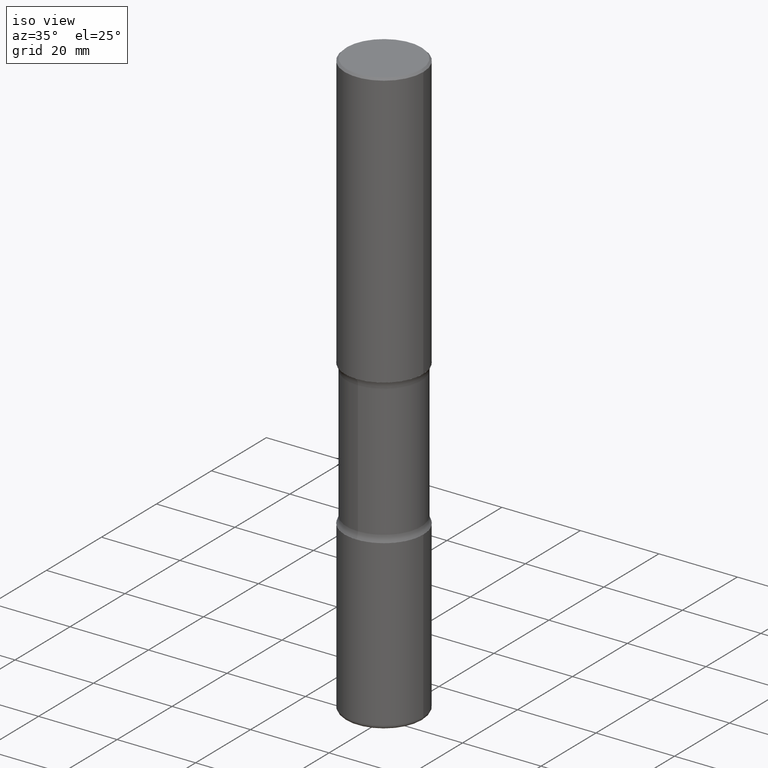
[diagram: clean part render]
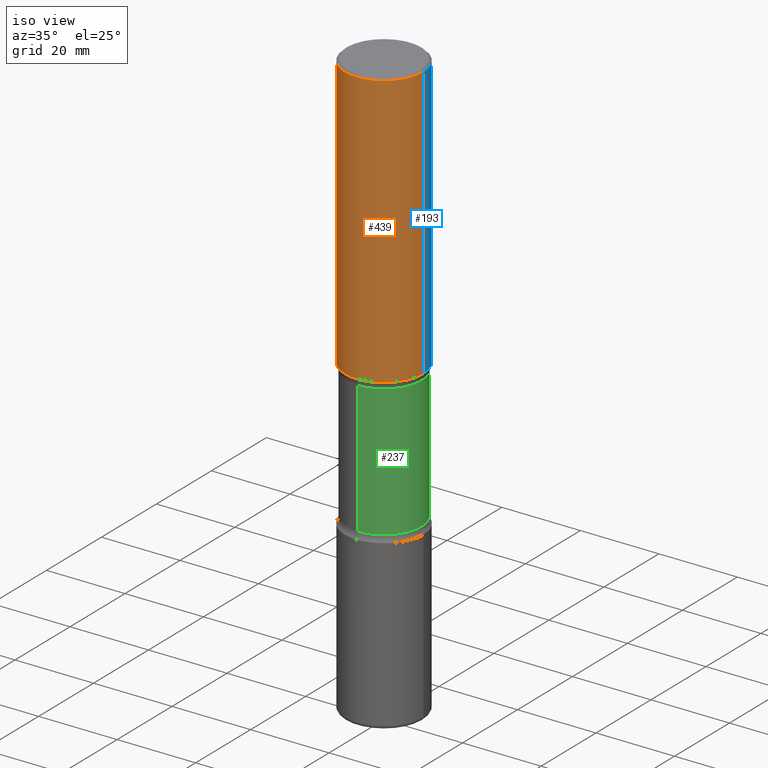
[diagram: same view with three faces highlighted in distinct colors, each labeled with its STEP entity id]
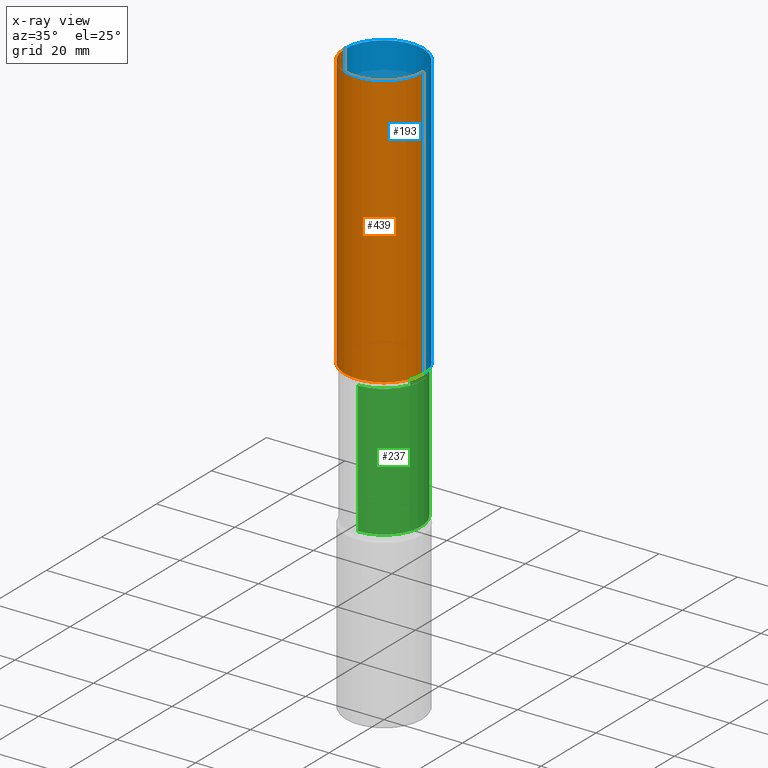
[diagram: x-ray of the same camera — body ghosted, the three highlighted faces saturated]
A machine part, iso view with three faces highlighted in distinct colors.
The next image is the same camera in x-ray (body ghosted, the three faces saturated) — at least one of them is partly hidden behind the body in this view.
Their STEP definitions:

[orange] entity #439 — the highlighted cylindrical surface (partial cylindrical patch) has radius 10 mm, axis along (-0, 0, 1).
#10 = DIRECTION ( 'NONE',  ( -2.445468806185136597E-29, 3.491481338843145583E-15, 1.000000000000000000 ) ) ;
#13 = VERTEX_POINT ( 'NONE', #344 ) ;
#45 = DIRECTION ( 'NONE',  ( 1.000000000000000000, -6.982962677686265133E-15, 0.000000000000000000 ) ) ;
#65 = AXIS2_PLACEMENT_3D ( 'NONE', #130, #10, #45 ) ;
#72 = ORIENTED_EDGE ( 'NONE', *, *, #134, .T. ) ;
#73 = DIRECTION ( 'NONE',  ( 1.000000000000000000, -6.982962677686266711E-15, 4.876176775795935793E-29 ) ) ;
#84 = AXIS2_PLACEMENT_3D ( 'NONE', #375, #150, #73 ) ;
#99 = VERTEX_POINT ( 'NONE', #522 ) ;
#125 = LINE ( 'NONE', #468, #254 ) ;
#130 = CARTESIAN_POINT ( 'NONE',  ( 6.739467482965614869E-29, -9.622173421717819657E-15, -2.755899999999998240 ) ) ;
#134 = EDGE_CURVE ( 'NONE', #252, #201, #372, .T. ) ;
#146 = EDGE_LOOP ( 'NONE', ( #482, #72, #299, #457 ) ) ;
#150 = DIRECTION ( 'NONE',  ( -2.445468806185136597E-29, 3.491481338843145583E-15, 1.000000000000000000 ) ) ;
#170 = DIRECTION ( 'NONE',  ( -2.445468806185136877E-29, 3.491481338843145188E-15, 1.000000000000000000 ) ) ;
#199 = CYLINDRICAL_SURFACE ( 'NONE', #84, 0.3937000000000001054 ) ;
#201 = VERTEX_POINT ( 'NONE', #355 ) ;
#209 = DIRECTION ( 'NONE',  ( -2.445468806185136597E-29, 3.491481338843145583E-15, 1.000000000000000000 ) ) ;
#252 = VERTEX_POINT ( 'NONE', #432 ) ;
#254 = VECTOR ( 'NONE', #170, 39.37007874015748143 ) ;
#255 = CIRCLE ( 'NONE', #437, 0.3936999999999999389 ) ;
#257 = CARTESIAN_POINT ( 'NONE',  ( 4.890937612370298557E-31, -6.982962677686327354E-17, -0.02000000000000010103 ) ) ;
#299 = ORIENTED_EDGE ( 'NONE', *, *, #301, .T. ) ;
#301 = EDGE_CURVE ( 'NONE', #201, #13, #310, .T. ) ;
#310 = LINE ( 'NONE', #478, #338 ) ;
#311 = DIRECTION ( 'NONE',  ( -2.445468806185136877E-29, 3.491481338843145188E-15, 1.000000000000000000 ) ) ;
#338 = VECTOR ( 'NONE', #311, 39.37007874015748143 ) ;
#344 = CARTESIAN_POINT ( 'NONE',  ( 0.3936999999999999389, -2.770807688499514945E-15, -0.02000000000000010103 ) ) ;
#355 = CARTESIAN_POINT ( 'NONE',  ( 0.3937000000000002164, -1.237136582792290287E-14, -2.755899999999998240 ) ) ;
#366 = EDGE_CURVE ( 'NONE', #252, #99, #125, .T. ) ;
#372 = CIRCLE ( 'NONE', #65, 0.3937000000000002164 ) ;
#375 = CARTESIAN_POINT ( 'NONE',  ( 0.000000000000000000, 0.000000000000000000, 0.000000000000000000 ) ) ;
#432 = CARTESIAN_POINT ( 'NONE',  ( -0.3937000000000002720, -2.048594773559823141E-15, -2.755899999999998240 ) ) ;
#437 = AXIS2_PLACEMENT_3D ( 'NONE', #257, #209, #558 ) ;
#439 = ADVANCED_FACE ( 'NONE', ( #458 ), #199, .T. ) ;
#445 = EDGE_CURVE ( 'NONE', #99, #13, #255, .T. ) ;
#457 = ORIENTED_EDGE ( 'NONE', *, *, #445, .F. ) ;
#458 = FACE_OUTER_BOUND ( 'NONE', #146, .T. ) ;
#468 = CARTESIAN_POINT ( 'NONE',  ( -0.3937000000000001054, 2.797406750687515181E-15, -1.936584745033357016E-29 ) ) ;
#478 = CARTESIAN_POINT ( 'NONE',  ( 0.3937000000000001054, -2.749192406205084005E-15, 1.919750796630860452E-29 ) ) ;
#482 = ORIENTED_EDGE ( 'NONE', *, *, #366, .F. ) ;
#522 = CARTESIAN_POINT ( 'NONE',  ( -0.3936999999999999389, 2.679362779428219524E-15, -0.02000000000000010103 ) ) ;
#558 = DIRECTION ( 'NONE',  ( 1.000000000000000000, -6.982962677686266711E-15, 0.000000000000000000 ) ) ;

[blue] entity #193 — the highlighted cylindrical surface (partial cylindrical patch) has radius 10 mm, axis along (-0, 0, 1).
#3 = CARTESIAN_POINT ( 'NONE',  ( 0.000000000000000000, 0.000000000000000000, 0.000000000000000000 ) ) ;
#13 = VERTEX_POINT ( 'NONE', #344 ) ;
#29 = CIRCLE ( 'NONE', #177, 0.3936999999999999389 ) ;
#99 = VERTEX_POINT ( 'NONE', #522 ) ;
#114 = ORIENTED_EDGE ( 'NONE', *, *, #301, .F. ) ;
#125 = LINE ( 'NONE', #468, #254 ) ;
#170 = DIRECTION ( 'NONE',  ( -2.445468806185136877E-29, 3.491481338843145188E-15, 1.000000000000000000 ) ) ;
#172 = DIRECTION ( 'NONE',  ( -2.445468806185136597E-29, 3.491481338843145583E-15, 1.000000000000000000 ) ) ;
#176 = DIRECTION ( 'NONE',  ( 1.000000000000000000, -6.982962677686266711E-15, 4.876176775795935793E-29 ) ) ;
#177 = AXIS2_PLACEMENT_3D ( 'NONE', #218, #172, #517 ) ;
#193 = ADVANCED_FACE ( 'NONE', ( #233 ), #398, .T. ) ;
#201 = VERTEX_POINT ( 'NONE', #355 ) ;
#218 = CARTESIAN_POINT ( 'NONE',  ( 4.890937612370298557E-31, -6.982962677686327354E-17, -0.02000000000000010103 ) ) ;
#228 = AXIS2_PLACEMENT_3D ( 'NONE', #477, #553, #465 ) ;
#233 = FACE_OUTER_BOUND ( 'NONE', #542, .T. ) ;
#252 = VERTEX_POINT ( 'NONE', #432 ) ;
#254 = VECTOR ( 'NONE', #170, 39.37007874015748143 ) ;
#301 = EDGE_CURVE ( 'NONE', #201, #13, #310, .T. ) ;
#310 = LINE ( 'NONE', #478, #338 ) ;
#311 = DIRECTION ( 'NONE',  ( -2.445468806185136877E-29, 3.491481338843145188E-15, 1.000000000000000000 ) ) ;
#338 = VECTOR ( 'NONE', #311, 39.37007874015748143 ) ;
#344 = CARTESIAN_POINT ( 'NONE',  ( 0.3936999999999999389, -2.770807688499514945E-15, -0.02000000000000010103 ) ) ;
#353 = EDGE_CURVE ( 'NONE', #13, #99, #29, .T. ) ;
#355 = CARTESIAN_POINT ( 'NONE',  ( 0.3937000000000002164, -1.237136582792290287E-14, -2.755899999999998240 ) ) ;
#362 = ORIENTED_EDGE ( 'NONE', *, *, #495, .T. ) ;
#366 = EDGE_CURVE ( 'NONE', #252, #99, #125, .T. ) ;
#398 = CYLINDRICAL_SURFACE ( 'NONE', #459, 0.3937000000000001054 ) ;
#406 = DIRECTION ( 'NONE',  ( -2.445468806185136597E-29, 3.491481338843145583E-15, 1.000000000000000000 ) ) ;
#432 = CARTESIAN_POINT ( 'NONE',  ( -0.3937000000000002720, -2.048594773559823141E-15, -2.755899999999998240 ) ) ;
#459 = AXIS2_PLACEMENT_3D ( 'NONE', #3, #406, #176 ) ;
#465 = DIRECTION ( 'NONE',  ( 1.000000000000000000, -6.982962677686265133E-15, 0.000000000000000000 ) ) ;
#468 = CARTESIAN_POINT ( 'NONE',  ( -0.3937000000000001054, 2.797406750687515181E-15, -1.936584745033357016E-29 ) ) ;
#477 = CARTESIAN_POINT ( 'NONE',  ( 6.739467482965614869E-29, -9.622173421717819657E-15, -2.755899999999998240 ) ) ;
#478 = CARTESIAN_POINT ( 'NONE',  ( 0.3937000000000001054, -2.749192406205084005E-15, 1.919750796630860452E-29 ) ) ;
#491 = CIRCLE ( 'NONE', #228, 0.3937000000000002164 ) ;
#495 = EDGE_CURVE ( 'NONE', #201, #252, #491, .T. ) ;
#517 = DIRECTION ( 'NONE',  ( 1.000000000000000000, -6.982962677686266711E-15, 0.000000000000000000 ) ) ;
#522 = CARTESIAN_POINT ( 'NONE',  ( -0.3936999999999999389, 2.679362779428219524E-15, -0.02000000000000010103 ) ) ;
#535 = ORIENTED_EDGE ( 'NONE', *, *, #353, .F. ) ;
#542 = EDGE_LOOP ( 'NONE', ( #362, #550, #535, #114 ) ) ;
#550 = ORIENTED_EDGE ( 'NONE', *, *, #366, .T. ) ;
#553 = DIRECTION ( 'NONE',  ( -2.445468806185136597E-29, 3.491481338843145583E-15, 1.000000000000000000 ) ) ;

[green] entity #237 — the highlighted cylindrical surface (partial cylindrical patch) has radius 9.4996 mm, axis along (0, -0, -1).
#35 = DIRECTION ( 'NONE',  ( 6.982962677686266711E-15, 1.000000000000000000, -2.921762560068729411E-15 ) ) ;
#40 = CIRCLE ( 'NONE', #274, 0.3740000000000001656 ) ;
#44 = DIRECTION ( 'NONE',  ( 6.982962677686266711E-15, 1.000000000000000000, -2.921762560068729411E-15 ) ) ;
#66 = ORIENTED_EDGE ( 'NONE', *, *, #425, .T. ) ;
#71 = AXIS2_PLACEMENT_3D ( 'NONE', #258, #224, #87 ) ;
#77 = FACE_OUTER_BOUND ( 'NONE', #149, .T. ) ;
#87 = DIRECTION ( 'NONE',  ( 6.982962677686266711E-15, 1.000000000000000000, -2.921762560068729411E-15 ) ) ;
#107 = CARTESIAN_POINT ( 'NONE',  ( -2.565826251166408560E-15, -0.3740000000000206493, -5.905499999999997307 ) ) ;
#118 = CARTESIAN_POINT ( 'NONE',  ( 2.611628041454766160E-15, 0.3739999999999856772, -4.145243411606584161 ) ) ;
#129 = CARTESIAN_POINT ( 'NONE',  ( 1.013341980608738414E-28, -1.447825793226129018E-14, -4.145243411606583273 ) ) ;
#149 = EDGE_LOOP ( 'NONE', ( #336, #66, #187, #538 ) ) ;
#173 = CARTESIAN_POINT ( 'NONE',  ( -2.633402156444500718E-15, -0.3740000000000146541, -4.145243411606582384 ) ) ;
#178 = VECTOR ( 'NONE', #334, 39.37007874015748143 ) ;
#183 = LINE ( 'NONE', #107, #178 ) ;
#187 = ORIENTED_EDGE ( 'NONE', *, *, #400, .F. ) ;
#223 = EDGE_CURVE ( 'NONE', #421, #549, #40, .T. ) ;
#224 = DIRECTION ( 'NONE',  ( 2.499563752616943710E-29, -3.414014296659653741E-15, -1.000000000000000000 ) ) ;
#225 = CARTESIAN_POINT ( 'NONE',  ( 6.829029461346524548E-29, -9.964976017815853586E-15, -2.823256588393414646 ) ) ;
#237 = ADVANCED_FACE ( 'NONE', ( #77 ), #270, .T. ) ;
#258 = CARTESIAN_POINT ( 'NONE',  ( 1.453329336974072664E-28, -2.048779909082575425E-14, -5.905499999999998195 ) ) ;
#264 = LINE ( 'NONE', #391, #312 ) ;
#269 = DIRECTION ( 'NONE',  ( 2.499563752616943710E-29, -3.414014296659653741E-15, -1.000000000000000000 ) ) ;
#270 = CYLINDRICAL_SURFACE ( 'NONE', #71, 0.3740000000000001656 ) ;
#274 = AXIS2_PLACEMENT_3D ( 'NONE', #225, #397, #35 ) ;
#281 = EDGE_CURVE ( 'NONE', #421, #325, #264, .T. ) ;
#312 = VECTOR ( 'NONE', #443, 39.37007874015748143 ) ;
#314 = CARTESIAN_POINT ( 'NONE',  ( 2.611628041454733028E-15, 0.3739999999999901736, -2.823256588393415534 ) ) ;
#315 = CIRCLE ( 'NONE', #393, 0.3740000000000001656 ) ;
#325 = VERTEX_POINT ( 'NONE', #118 ) ;
#334 = DIRECTION ( 'NONE',  ( 2.499563752616943710E-29, -3.414014296659653741E-15, -1.000000000000000000 ) ) ;
#336 = ORIENTED_EDGE ( 'NONE', *, *, #223, .T. ) ;
#391 = CARTESIAN_POINT ( 'NONE',  ( 2.611628041454809941E-15, 0.3739999999999796820, -5.905499999999999972 ) ) ;
#393 = AXIS2_PLACEMENT_3D ( 'NONE', #129, #269, #44 ) ;
#397 = DIRECTION ( 'NONE',  ( 2.499563752616943710E-29, -3.414014296659653741E-15, -1.000000000000000000 ) ) ;
#400 = EDGE_CURVE ( 'NONE', #325, #544, #315, .T. ) ;
#421 = VERTEX_POINT ( 'NONE', #314 ) ;
#425 = EDGE_CURVE ( 'NONE', #549, #544, #183, .T. ) ;
#443 = DIRECTION ( 'NONE',  ( 2.499563752616943710E-29, -3.414014296659653741E-15, -1.000000000000000000 ) ) ;
#505 = CARTESIAN_POINT ( 'NONE',  ( -2.633402156444536217E-15, -0.3740000000000101577, -2.823256588393413313 ) ) ;
#538 = ORIENTED_EDGE ( 'NONE', *, *, #281, .F. ) ;
#544 = VERTEX_POINT ( 'NONE', #173 ) ;
#549 = VERTEX_POINT ( 'NONE', #505 ) ;